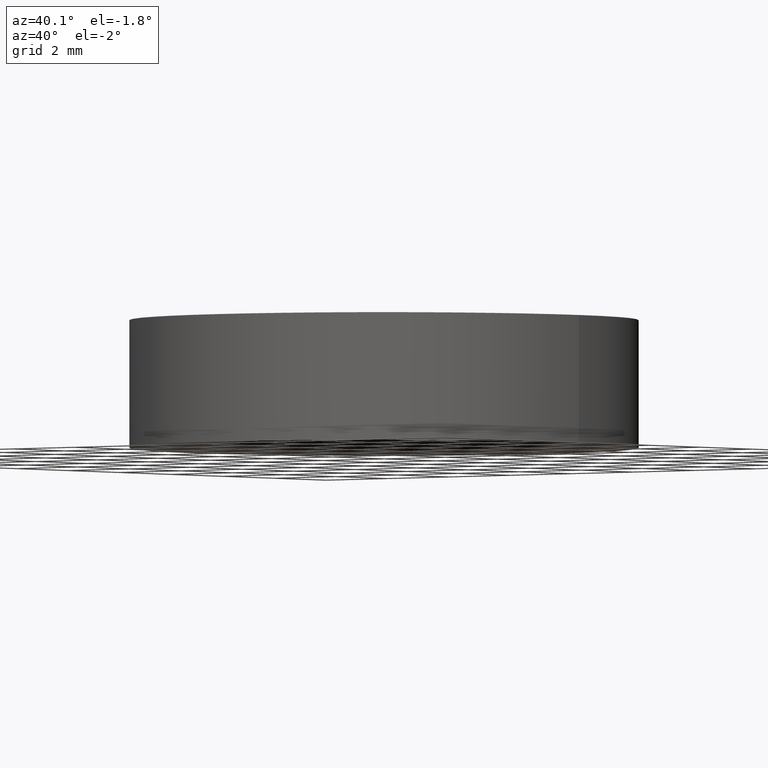
[diagram: clean part render]
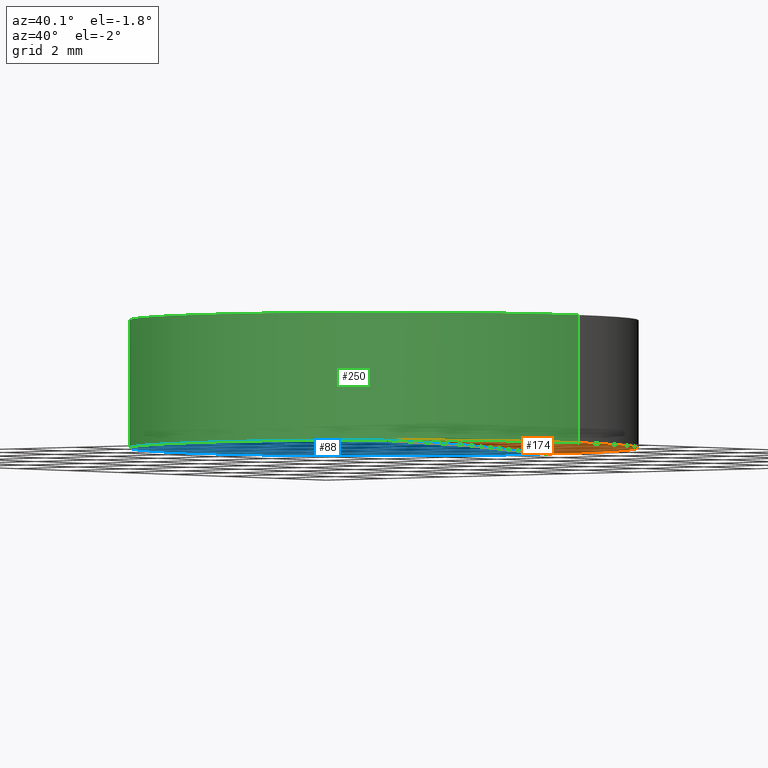
[diagram: same view with three faces highlighted in distinct colors, each labeled with its STEP entity id]
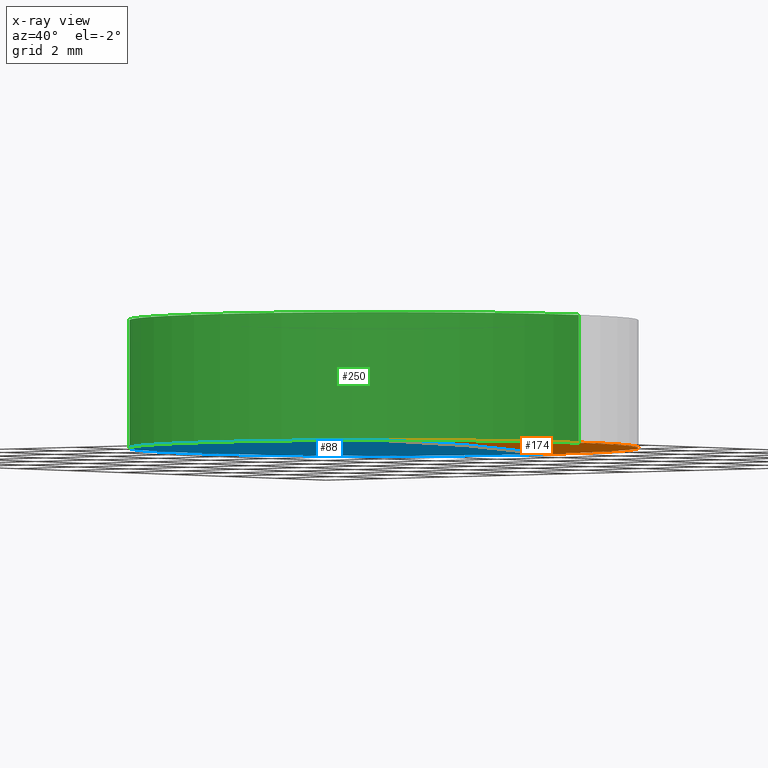
[diagram: x-ray of the same camera — body ghosted, the three highlighted faces saturated]
A machine part, auxiliary view with three faces highlighted in distinct colors.
The next image is the same camera in x-ray (body ghosted, the three faces saturated) — at least one of them is partly hidden behind the body in this view.
Their STEP definitions:

[orange] entity #174 — the highlighted face is a freeform B-spline surface patch.
#1 = DIRECTION ( 'NONE',  ( 0.0000000000000000000, 1.000000000000000000, -2.663682880578590500E-016 ) ) ;
#21 = CARTESIAN_POINT ( 'NONE',  ( 2.132374834590381700, -2.144756245205961000, 0.06619748535020354700 ) ) ;
#24 = VERTEX_POINT ( 'NONE', #59 ) ;
#34 = DIRECTION ( 'NONE',  ( 1.000000000000000000, 0.0000000000000000000, 0.0000000000000000000 ) ) ;
#46 = DIRECTION ( 'NONE',  ( 1.000000000000000000, 0.0000000000000000000, 0.0000000000000000000 ) ) ;
#51 = EDGE_CURVE ( 'NONE', #203, #24, #212, .T. ) ;
#58 = EDGE_CURVE ( 'NONE', #24, #176, #230, .T. ) ;
#59 = CARTESIAN_POINT ( 'NONE',  ( -4.352487738278875200E-014, 6.349999999999939200, -0.1936660582635444400 ) ) ;
#65 = DIRECTION ( 'NONE',  ( 1.000000000000000000, 7.859994458592750000E-032, 2.818484370769980100E-016 ) ) ;
#69 = CARTESIAN_POINT ( 'NONE',  ( 6.349999999999999600, 1.221245327087670000E-015, -0.1936660582635470200 ) ) ;
#70 = CARTESIAN_POINT ( 'NONE',  ( 6.375892942444111500, -6.426103823646189800, -0.3939636686083113900 ) ) ;
#85 = CARTESIAN_POINT ( 'NONE',  ( -1.421085471520200100E-014, -1.421085471520200100E-014, -104.2000000000000000 ) ) ;
#90 = CARTESIAN_POINT ( 'NONE',  ( -4.359811951640958100E-014, 2.144756245205954800, 0.06619748535020388000 ) ) ;
#92 = CARTESIAN_POINT ( 'NONE',  ( 4.252928982022134500, -6.426103823646191600, -0.2635686413951936500 ) ) ;
#96 = CARTESIAN_POINT ( 'NONE',  ( 2.126964701252065800, 6.426103823646185400, -0.1983404476268984500 ) ) ;
#102 = ORIENTED_EDGE ( 'NONE', *, *, #51, .F. ) ;
#106 = CIRCLE ( 'NONE', #276, 6.349999999999999600 ) ;
#123 =( BOUNDED_SURFACE ( )  B_SPLINE_SURFACE ( 3, 3, ( 
 ( #158, #96, #232, #283 ),
 ( #90, #255, #208, #257 ),
 ( #131, #21, #204, #234 ),
 ( #134, #258, #92, #70 ) ),
 .UNSPECIFIED., .F., .F., .F. ) 
 B_SPLINE_SURFACE_WITH_KNOTS ( ( 4, 4 ),
 ( 4, 4 ),
 ( 0.0000000000000000000, 1.000000000000000000 ),
 ( 0.0000000000000000000, 1.000000000000000000 ),
 .UNSPECIFIED. ) 
 GEOMETRIC_REPRESENTATION_ITEM ( )  RATIONAL_B_SPLINE_SURFACE ( (
 ( 1.000000000000000000, 0.9996864325074911200, 0.9996864325074911200, 1.000000000000000000),
 ( 0.9987310272064817700, 0.9984178576225898300, 0.9984178576225898300, 0.9987310272064817700),
 ( 0.9987310272064817700, 0.9984178576225898300, 0.9984178576225898300, 0.9987310272064817700),
 ( 1.000000000000000000, 0.9996864325074911200, 0.9996864325074911200, 1.000000000000000000) ) ) 
 REPRESENTATION_ITEM ( '' )  SURFACE ( )  );
#131 = CARTESIAN_POINT ( 'NONE',  ( -4.359811951640958100E-014, -2.144756245205960500, 0.06619748535020295000 ) ) ;
#132 = CARTESIAN_POINT ( 'NONE',  ( -4.352487738278875200E-014, -6.349999999999952600, -0.1936660582635444400 ) ) ;
#134 = CARTESIAN_POINT ( 'NONE',  ( -4.352355991345239500E-014, -6.426103823646189800, -0.1983404476268990600 ) ) ;
#143 = EDGE_LOOP ( 'NONE', ( #155, #102, #270 ) ) ;
#147 = DIRECTION ( 'NONE',  ( 0.0000000000000000000, 0.0000000000000000000, 1.000000000000000000 ) ) ;
#154 = FACE_OUTER_BOUND ( 'NONE', #143, .T. ) ;
#155 = ORIENTED_EDGE ( 'NONE', *, *, #58, .F. ) ;
#158 = CARTESIAN_POINT ( 'NONE',  ( -4.352355991345239500E-014, 6.426103823646184500, -0.1983404476268990600 ) ) ;
#173 = AXIS2_PLACEMENT_3D ( 'NONE', #223, #147, #34 ) ;
#174 = ADVANCED_FACE ( 'NONE', ( #154 ), #123, .F. ) ;
#176 = VERTEX_POINT ( 'NONE', #132 ) ;
#203 = VERTEX_POINT ( 'NONE', #69 ) ;
#204 = CARTESIAN_POINT ( 'NONE',  ( 4.263746704035847700, -2.144756245205961000, 0.0008033775799052611600 ) ) ;
#208 = CARTESIAN_POINT ( 'NONE',  ( 4.263746704035847700, 2.144756245205954800, 0.0008033775799061827300 ) ) ;
#212 = CIRCLE ( 'NONE', #173, 6.349999999999999600 ) ;
#218 = AXIS2_PLACEMENT_3D ( 'NONE', #85, #65, #1 ) ;
#223 = CARTESIAN_POINT ( 'NONE',  ( 2.498001805406600200E-016, 1.221245327087670000E-015, -0.1936660582635470200 ) ) ;
#230 = CIRCLE ( 'NONE', #218, 104.2000000000000000 ) ;
#232 = CARTESIAN_POINT ( 'NONE',  ( 4.252928982022134500, 6.426103823646185400, -0.2635686413951937000 ) ) ;
#234 = CARTESIAN_POINT ( 'NONE',  ( 6.392110621538243700, -2.144756245205960500, -0.1299233215615059300 ) ) ;
#247 = EDGE_CURVE ( 'NONE', #176, #203, #106, .T. ) ;
#255 = CARTESIAN_POINT ( 'NONE',  ( 2.132374834590381700, 2.144756245205954800, 0.06619748535020443500 ) ) ;
#257 = CARTESIAN_POINT ( 'NONE',  ( 6.392110621538243700, 2.144756245205954800, -0.1299233215615049900 ) ) ;
#258 = CARTESIAN_POINT ( 'NONE',  ( 2.126964701252065800, -6.426103823646191600, -0.1983404476268984500 ) ) ;
#270 = ORIENTED_EDGE ( 'NONE', *, *, #247, .F. ) ;
#276 = AXIS2_PLACEMENT_3D ( 'NONE', #290, #289, #46 ) ;
#283 = CARTESIAN_POINT ( 'NONE',  ( 6.375892942444111500, 6.426103823646184500, -0.3939636686083114500 ) ) ;
#289 = DIRECTION ( 'NONE',  ( 0.0000000000000000000, 0.0000000000000000000, 1.000000000000000000 ) ) ;
#290 = CARTESIAN_POINT ( 'NONE',  ( 2.498001805406600200E-016, 1.221245327087670000E-015, -0.1936660582635470200 ) ) ;

[blue] entity #88 — the highlighted face is a freeform B-spline surface patch.
#1 = DIRECTION ( 'NONE',  ( 0.0000000000000000000, 1.000000000000000000, -2.663682880578590500E-016 ) ) ;
#14 = DIRECTION ( 'NONE',  ( 1.000000000000000000, 0.0000000000000000000, 0.0000000000000000000 ) ) ;
#20 = EDGE_LOOP ( 'NONE', ( #138, #221, #139 ) ) ;
#24 = VERTEX_POINT ( 'NONE', #59 ) ;
#27 = CARTESIAN_POINT ( 'NONE',  ( -6.349999999999999600, 1.998896044546239400E-015, -0.1936660582635470200 ) ) ;
#38 = CARTESIAN_POINT ( 'NONE',  ( -2.132374834590450100, -2.144756245205961000, 0.06619748535019258400 ) ) ;
#39 = CARTESIAN_POINT ( 'NONE',  ( -6.375892942444090200, -6.426103823646189800, -0.3939636686083186600 ) ) ;
#53 = CIRCLE ( 'NONE', #119, 6.349999999999999600 ) ;
#58 = EDGE_CURVE ( 'NONE', #24, #176, #230, .T. ) ;
#59 = CARTESIAN_POINT ( 'NONE',  ( -4.352487738278875200E-014, 6.349999999999939200, -0.1936660582635444400 ) ) ;
#62 = EDGE_CURVE ( 'NONE', #24, #243, #53, .T. ) ;
#63 = CARTESIAN_POINT ( 'NONE',  ( -2.132374834590449200, 2.144756245205954800, 0.06619748535019345800 ) ) ;
#65 = DIRECTION ( 'NONE',  ( 1.000000000000000000, 7.859994458592750000E-032, 2.818484370769980100E-016 ) ) ;
#85 = CARTESIAN_POINT ( 'NONE',  ( -1.421085471520200100E-014, -1.421085471520200100E-014, -104.2000000000000000 ) ) ;
#88 = ADVANCED_FACE ( 'NONE', ( #224 ), #182, .F. ) ;
#107 = CARTESIAN_POINT ( 'NONE',  ( -6.852157730108388000E-014, 6.426103823646184500, -0.1983404476269083100 ) ) ;
#110 = CARTESIAN_POINT ( 'NONE',  ( -6.375892942444090200, 6.426103823646184500, -0.3939636686083186600 ) ) ;
#119 = AXIS2_PLACEMENT_3D ( 'NONE', #151, #251, #14 ) ;
#125 = CARTESIAN_POINT ( 'NONE',  ( -6.392110621538222400, -2.144756245205960500, -0.1299233215615131800 ) ) ;
#128 = CARTESIAN_POINT ( 'NONE',  ( -6.392110621538221500, 2.144756245205954800, -0.1299233215615122600 ) ) ;
#129 = EDGE_CURVE ( 'NONE', #243, #176, #235, .T. ) ;
#132 = CARTESIAN_POINT ( 'NONE',  ( -4.352487738278875200E-014, -6.349999999999952600, -0.1936660582635444400 ) ) ;
#133 = DIRECTION ( 'NONE',  ( 1.000000000000000000, 0.0000000000000000000, 0.0000000000000000000 ) ) ;
#138 = ORIENTED_EDGE ( 'NONE', *, *, #62, .F. ) ;
#139 = ORIENTED_EDGE ( 'NONE', *, *, #129, .F. ) ;
#151 = CARTESIAN_POINT ( 'NONE',  ( 2.498001805406600200E-016, 1.221245327087670000E-015, -0.1936660582635470200 ) ) ;
#152 = CARTESIAN_POINT ( 'NONE',  ( -4.263746704035870700, 2.144756245205954800, 0.0008033775798952051800 ) ) ;
#153 = CARTESIAN_POINT ( 'NONE',  ( -2.126964701252132900, -6.426103823646191600, -0.1983404476269094400 ) ) ;
#157 = AXIS2_PLACEMENT_3D ( 'NONE', #197, #227, #133 ) ;
#172 = CARTESIAN_POINT ( 'NONE',  ( -6.852157730108389300E-014, 2.144756245205954800, 0.06619748535019458200 ) ) ;
#176 = VERTEX_POINT ( 'NONE', #132 ) ;
#182 =( BOUNDED_SURFACE ( )  B_SPLINE_SURFACE ( 3, 3, ( 
 ( #110, #278, #225, #107 ),
 ( #128, #152, #63, #172 ),
 ( #125, #254, #38, #229 ),
 ( #39, #195, #153, #199 ) ),
 .UNSPECIFIED., .F., .F., .F. ) 
 B_SPLINE_SURFACE_WITH_KNOTS ( ( 4, 4 ),
 ( 4, 4 ),
 ( 0.0000000000000000000, 1.000000000000000000 ),
 ( 0.0000000000000000000, 1.000000000000000000 ),
 .UNSPECIFIED. ) 
 GEOMETRIC_REPRESENTATION_ITEM ( )  RATIONAL_B_SPLINE_SURFACE ( (
 ( 1.000000000000000000, 0.9996864325074911200, 0.9996864325074911200, 1.000000000000000000),
 ( 0.9987310272064817700, 0.9984178576225898300, 0.9984178576225898300, 0.9987310272064817700),
 ( 0.9987310272064817700, 0.9984178576225898300, 0.9984178576225898300, 0.9987310272064817700),
 ( 1.000000000000000000, 0.9996864325074911200, 0.9996864325074911200, 1.000000000000000000) ) ) 
 REPRESENTATION_ITEM ( '' )  SURFACE ( )  );
#195 = CARTESIAN_POINT ( 'NONE',  ( -4.252928982022157600, -6.426103823646191600, -0.2635686413952046400 ) ) ;
#197 = CARTESIAN_POINT ( 'NONE',  ( 2.498001805406600200E-016, 1.221245327087670000E-015, -0.1936660582635470200 ) ) ;
#199 = CARTESIAN_POINT ( 'NONE',  ( -6.852157730108388000E-014, -6.426103823646189800, -0.1983404476269083100 ) ) ;
#218 = AXIS2_PLACEMENT_3D ( 'NONE', #85, #65, #1 ) ;
#221 = ORIENTED_EDGE ( 'NONE', *, *, #58, .T. ) ;
#224 = FACE_OUTER_BOUND ( 'NONE', #20, .T. ) ;
#225 = CARTESIAN_POINT ( 'NONE',  ( -2.126964701252132900, 6.426103823646185400, -0.1983404476269094400 ) ) ;
#227 = DIRECTION ( 'NONE',  ( 0.0000000000000000000, 0.0000000000000000000, 1.000000000000000000 ) ) ;
#229 = CARTESIAN_POINT ( 'NONE',  ( -6.938893903907229600E-014, -2.144756245205960500, 0.06619748535019370800 ) ) ;
#230 = CIRCLE ( 'NONE', #218, 104.2000000000000000 ) ;
#235 = CIRCLE ( 'NONE', #157, 6.349999999999999600 ) ;
#243 = VERTEX_POINT ( 'NONE', #27 ) ;
#251 = DIRECTION ( 'NONE',  ( 0.0000000000000000000, 0.0000000000000000000, 1.000000000000000000 ) ) ;
#254 = CARTESIAN_POINT ( 'NONE',  ( -4.263746704035871600, -2.144756245205961000, 0.0008033775798943109300 ) ) ;
#278 = CARTESIAN_POINT ( 'NONE',  ( -4.252928982022157600, 6.426103823646185400, -0.2635686413952046400 ) ) ;

[green] entity #250 — the highlighted cylindrical surface (partial cylindrical patch) has radius 6.35 mm, axis along (0, 0, 1).
#2 = DIRECTION ( 'NONE',  ( -0.0000000000000000000, -0.0000000000000000000, -1.000000000000000000 ) ) ;
#4 = EDGE_LOOP ( 'NONE', ( #194, #213, #226, #89, #150, #15 ) ) ;
#7 = VECTOR ( 'NONE', #160, 1000.000000000000000 ) ;
#15 = ORIENTED_EDGE ( 'NONE', *, *, #66, .T. ) ;
#17 = CARTESIAN_POINT ( 'NONE',  ( -6.349999999999999600, 1.998896044546239400E-015, 2.993666058263550100 ) ) ;
#22 = DIRECTION ( 'NONE',  ( -0.0000000000000000000, -0.0000000000000000000, -1.000000000000000000 ) ) ;
#23 = AXIS2_PLACEMENT_3D ( 'NONE', #112, #22, #236 ) ;
#27 = CARTESIAN_POINT ( 'NONE',  ( -6.349999999999999600, 1.998896044546239400E-015, -0.1936660582635470200 ) ) ;
#29 = LINE ( 'NONE', #175, #7 ) ;
#30 = CARTESIAN_POINT ( 'NONE',  ( 6.349999999999999600, 1.221245327087670000E-015, -0.1936660582635470200 ) ) ;
#42 = CARTESIAN_POINT ( 'NONE',  ( 6.349999999999999600, 1.221245327087670000E-015, 2.993666058263550100 ) ) ;
#46 = DIRECTION ( 'NONE',  ( 1.000000000000000000, 0.0000000000000000000, 0.0000000000000000000 ) ) ;
#49 = DIRECTION ( 'NONE',  ( 1.000000000000000000, 0.0000000000000000000, 0.0000000000000000000 ) ) ;
#66 = EDGE_CURVE ( 'NONE', #260, #95, #171, .T. ) ;
#69 = CARTESIAN_POINT ( 'NONE',  ( 6.349999999999999600, 1.221245327087670000E-015, -0.1936660582635470200 ) ) ;
#72 = FACE_OUTER_BOUND ( 'NONE', #4, .T. ) ;
#86 = CARTESIAN_POINT ( 'NONE',  ( 2.498001805406600200E-016, 1.221245327087670000E-015, 2.993666058263550100 ) ) ;
#87 = CIRCLE ( 'NONE', #23, 6.349999999999999600 ) ;
#89 = ORIENTED_EDGE ( 'NONE', *, *, #286, .T. ) ;
#95 = VERTEX_POINT ( 'NONE', #17 ) ;
#106 = CIRCLE ( 'NONE', #276, 6.349999999999999600 ) ;
#112 = CARTESIAN_POINT ( 'NONE',  ( 2.498001805406600200E-016, 1.221245327087670000E-015, 2.993666058263550100 ) ) ;
#116 = DIRECTION ( 'NONE',  ( 0.0000000000000000000, 0.0000000000000000000, 1.000000000000000000 ) ) ;
#126 = DIRECTION ( 'NONE',  ( 1.000000000000000000, 0.0000000000000000000, 0.0000000000000000000 ) ) ;
#129 = EDGE_CURVE ( 'NONE', #243, #176, #235, .T. ) ;
#132 = CARTESIAN_POINT ( 'NONE',  ( -4.352487738278875200E-014, -6.349999999999952600, -0.1936660582635444400 ) ) ;
#133 = DIRECTION ( 'NONE',  ( 1.000000000000000000, 0.0000000000000000000, 0.0000000000000000000 ) ) ;
#141 = EDGE_CURVE ( 'NONE', #191, #260, #87, .T. ) ;
#150 = ORIENTED_EDGE ( 'NONE', *, *, #141, .T. ) ;
#157 = AXIS2_PLACEMENT_3D ( 'NONE', #197, #227, #133 ) ;
#160 = DIRECTION ( 'NONE',  ( 0.0000000000000000000, 0.0000000000000000000, 1.000000000000000000 ) ) ;
#171 = CIRCLE ( 'NONE', #264, 6.349999999999999600 ) ;
#175 = CARTESIAN_POINT ( 'NONE',  ( -6.349999999999999600, 1.998896044546239400E-015, -0.1936660582635470200 ) ) ;
#176 = VERTEX_POINT ( 'NONE', #132 ) ;
#183 = CARTESIAN_POINT ( 'NONE',  ( 2.498001805406600200E-016, 1.221245327087670000E-015, -0.1936660582635470200 ) ) ;
#187 = EDGE_CURVE ( 'NONE', #243, #95, #29, .T. ) ;
#191 = VERTEX_POINT ( 'NONE', #42 ) ;
#194 = ORIENTED_EDGE ( 'NONE', *, *, #187, .F. ) ;
#196 = AXIS2_PLACEMENT_3D ( 'NONE', #183, #116, #49 ) ;
#197 = CARTESIAN_POINT ( 'NONE',  ( 2.498001805406600200E-016, 1.221245327087670000E-015, -0.1936660582635470200 ) ) ;
#203 = VERTEX_POINT ( 'NONE', #69 ) ;
#213 = ORIENTED_EDGE ( 'NONE', *, *, #129, .T. ) ;
#226 = ORIENTED_EDGE ( 'NONE', *, *, #247, .T. ) ;
#227 = DIRECTION ( 'NONE',  ( 0.0000000000000000000, 0.0000000000000000000, 1.000000000000000000 ) ) ;
#235 = CIRCLE ( 'NONE', #157, 6.349999999999999600 ) ;
#236 = DIRECTION ( 'NONE',  ( 1.000000000000000000, 0.0000000000000000000, 0.0000000000000000000 ) ) ;
#243 = VERTEX_POINT ( 'NONE', #27 ) ;
#247 = EDGE_CURVE ( 'NONE', #176, #203, #106, .T. ) ;
#250 = ADVANCED_FACE ( 'NONE', ( #72 ), #294, .T. ) ;
#260 = VERTEX_POINT ( 'NONE', #262 ) ;
#261 = DIRECTION ( 'NONE',  ( 0.0000000000000000000, 0.0000000000000000000, 1.000000000000000000 ) ) ;
#262 = CARTESIAN_POINT ( 'NONE',  ( 4.352487738278875200E-014, -6.350000000000089400, 2.993666058263544400 ) ) ;
#264 = AXIS2_PLACEMENT_3D ( 'NONE', #86, #2, #126 ) ;
#266 = VECTOR ( 'NONE', #261, 1000.000000000000000 ) ;
#274 = LINE ( 'NONE', #30, #266 ) ;
#276 = AXIS2_PLACEMENT_3D ( 'NONE', #290, #289, #46 ) ;
#286 = EDGE_CURVE ( 'NONE', #203, #191, #274, .T. ) ;
#289 = DIRECTION ( 'NONE',  ( 0.0000000000000000000, 0.0000000000000000000, 1.000000000000000000 ) ) ;
#290 = CARTESIAN_POINT ( 'NONE',  ( 2.498001805406600200E-016, 1.221245327087670000E-015, -0.1936660582635470200 ) ) ;
#294 = CYLINDRICAL_SURFACE ( 'NONE', #196, 6.349999999999999600 ) ;